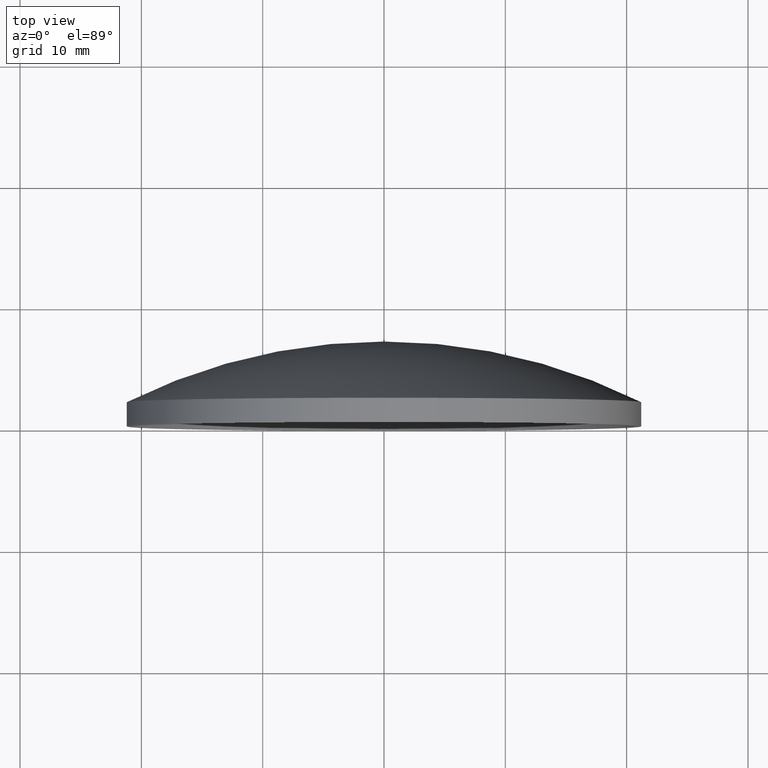
[diagram: clean part render]
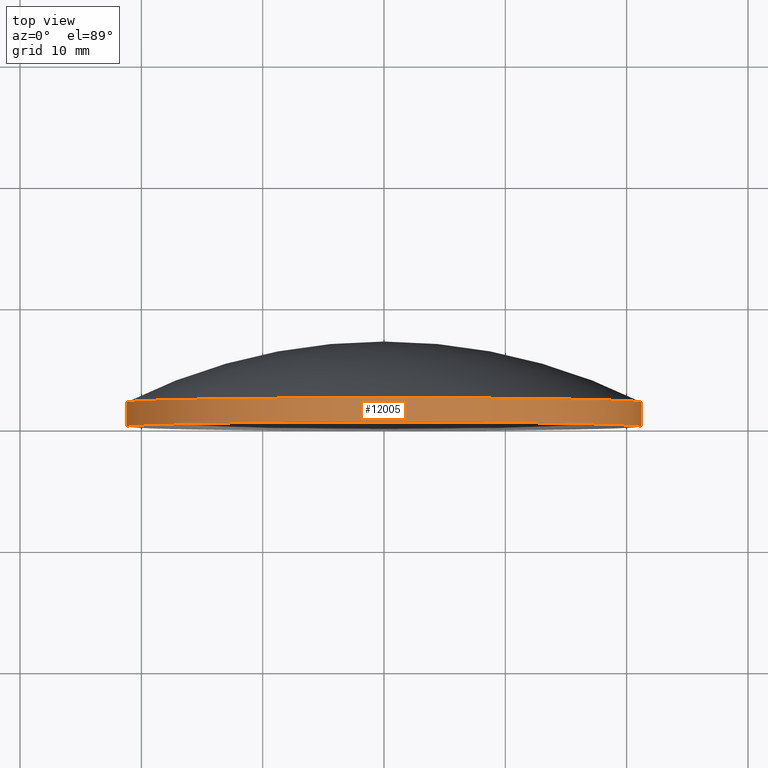
[diagram: same view with one face highlighted and labeled with its STEP entity id]
A machine part, top view. The second image highlights one B-rep face of the part: STEP entity #12005.
In plain terms, the highlighted cylindrical surface (partial cylindrical patch) has radius 21.2 mm, axis along (-0, -1, -0).
Its self-contained STEP definition (entity closure, byte-faithful):
#285 = ORIENTED_EDGE ( 'NONE', *, *, #7782, .F. ) ;
#790 = AXIS2_PLACEMENT_3D ( 'NONE', #4415, #6351, #3546 ) ;
#1004 = CIRCLE ( 'NONE', #6683, 21.20000000000001700 ) ;
#1650 = CARTESIAN_POINT ( 'NONE',  ( -21.20000000000003800, 2.000000000000302900, 2.596251214192391500E-015 ) ) ;
#2225 = ORIENTED_EDGE ( 'NONE', *, *, #5696, .F. ) ;
#2230 = EDGE_CURVE ( 'NONE', #12051, #4545, #7493, .T. ) ;
#2248 = CARTESIAN_POINT ( 'NONE',  ( 21.20000000000002400, 4.999999999999843700, 0.0000000000000000000 ) ) ;
#2289 = DIRECTION ( 'NONE',  ( -6.932614350277811200E-015, -1.000000000000000000, -0.0000000000000000000 ) ) ;
#2628 = CIRCLE ( 'NONE', #790, 21.20000000000003500 ) ;
#3544 = DIRECTION ( 'NONE',  ( -6.932614350277811200E-015, -1.000000000000000000, -0.0000000000000000000 ) ) ;
#3546 = DIRECTION ( 'NONE',  ( 1.000000000000000000, -6.932614350277812000E-015, 0.0000000000000000000 ) ) ;
#3718 = DIRECTION ( 'NONE',  ( 1.000000000000000000, -6.934802574954447400E-015, 0.0000000000000000000 ) ) ;
#3729 = CARTESIAN_POINT ( 'NONE',  ( 21.19999999999999900, -3.856737457803261500E-015, 0.0000000000000000000 ) ) ;
#3758 = DIRECTION ( 'NONE',  ( -6.932614350277811200E-015, -1.000000000000000000, -0.0000000000000000000 ) ) ;
#4415 = CARTESIAN_POINT ( 'NONE',  ( -3.466307175138799600E-014, 1.431146867680865900E-013, 0.0000000000000000000 ) ) ;
#4545 = VERTEX_POINT ( 'NONE', #9775 ) ;
#5696 = EDGE_CURVE ( 'NONE', #6883, #8287, #10251, .T. ) ;
#6052 = CARTESIAN_POINT ( 'NONE',  ( 21.19999999999999600, 2.000000000000008900, 0.0000000000000000000 ) ) ;
#6162 = EDGE_CURVE ( 'NONE', #6883, #12051, #1004, .T. ) ;
#6351 = DIRECTION ( 'NONE',  ( -6.932614350277811200E-015, -1.000000000000000000, -0.0000000000000000000 ) ) ;
#6439 = VECTOR ( 'NONE', #2289, 1000.000000000000000 ) ;
#6485 = CARTESIAN_POINT ( 'NONE',  ( -2.079784305083228800E-014, 2.000000000000155900, 0.0000000000000000000 ) ) ;
#6683 = AXIS2_PLACEMENT_3D ( 'NONE', #6485, #3758, #3718 ) ;
#6883 = VERTEX_POINT ( 'NONE', #6052 ) ;
#7242 = DIRECTION ( 'NONE',  ( 1.000000000000000000, -6.914345930190567500E-015, 0.0000000000000000000 ) ) ;
#7493 = LINE ( 'NONE', #9602, #10573 ) ;
#7782 = EDGE_CURVE ( 'NONE', #8287, #4545, #2628, .T. ) ;
#8128 = FACE_OUTER_BOUND ( 'NONE', #8804, .T. ) ;
#8287 = VERTEX_POINT ( 'NONE', #3729 ) ;
#8804 = EDGE_LOOP ( 'NONE', ( #12077, #9703, #285, #2225 ) ) ;
#9602 = CARTESIAN_POINT ( 'NONE',  ( -21.20000000000002400, 5.000000000000136800, 2.596251214192391900E-015 ) ) ;
#9703 = ORIENTED_EDGE ( 'NONE', *, *, #2230, .T. ) ;
#9775 = CARTESIAN_POINT ( 'NONE',  ( -21.20000000000007000, 2.900861109939764400E-013, 2.596251214192394300E-015 ) ) ;
#9993 = CARTESIAN_POINT ( 'NONE',  ( 0.0000000000000000000, 4.999999999999990200, 0.0000000000000000000 ) ) ;
#10251 = LINE ( 'NONE', #2248, #6439 ) ;
#10573 = VECTOR ( 'NONE', #10659, 1000.000000000000000 ) ;
#10659 = DIRECTION ( 'NONE',  ( -6.932614350277811200E-015, -1.000000000000000000, -0.0000000000000000000 ) ) ;
#11135 = AXIS2_PLACEMENT_3D ( 'NONE', #9993, #3544, #7242 ) ;
#11813 = CYLINDRICAL_SURFACE ( 'NONE', #11135, 21.20000000000002400 ) ;
#12005 = ADVANCED_FACE ( 'NONE', ( #8128 ), #11813, .T. ) ;
#12051 = VERTEX_POINT ( 'NONE', #1650 ) ;
#12077 = ORIENTED_EDGE ( 'NONE', *, *, #6162, .T. ) ;